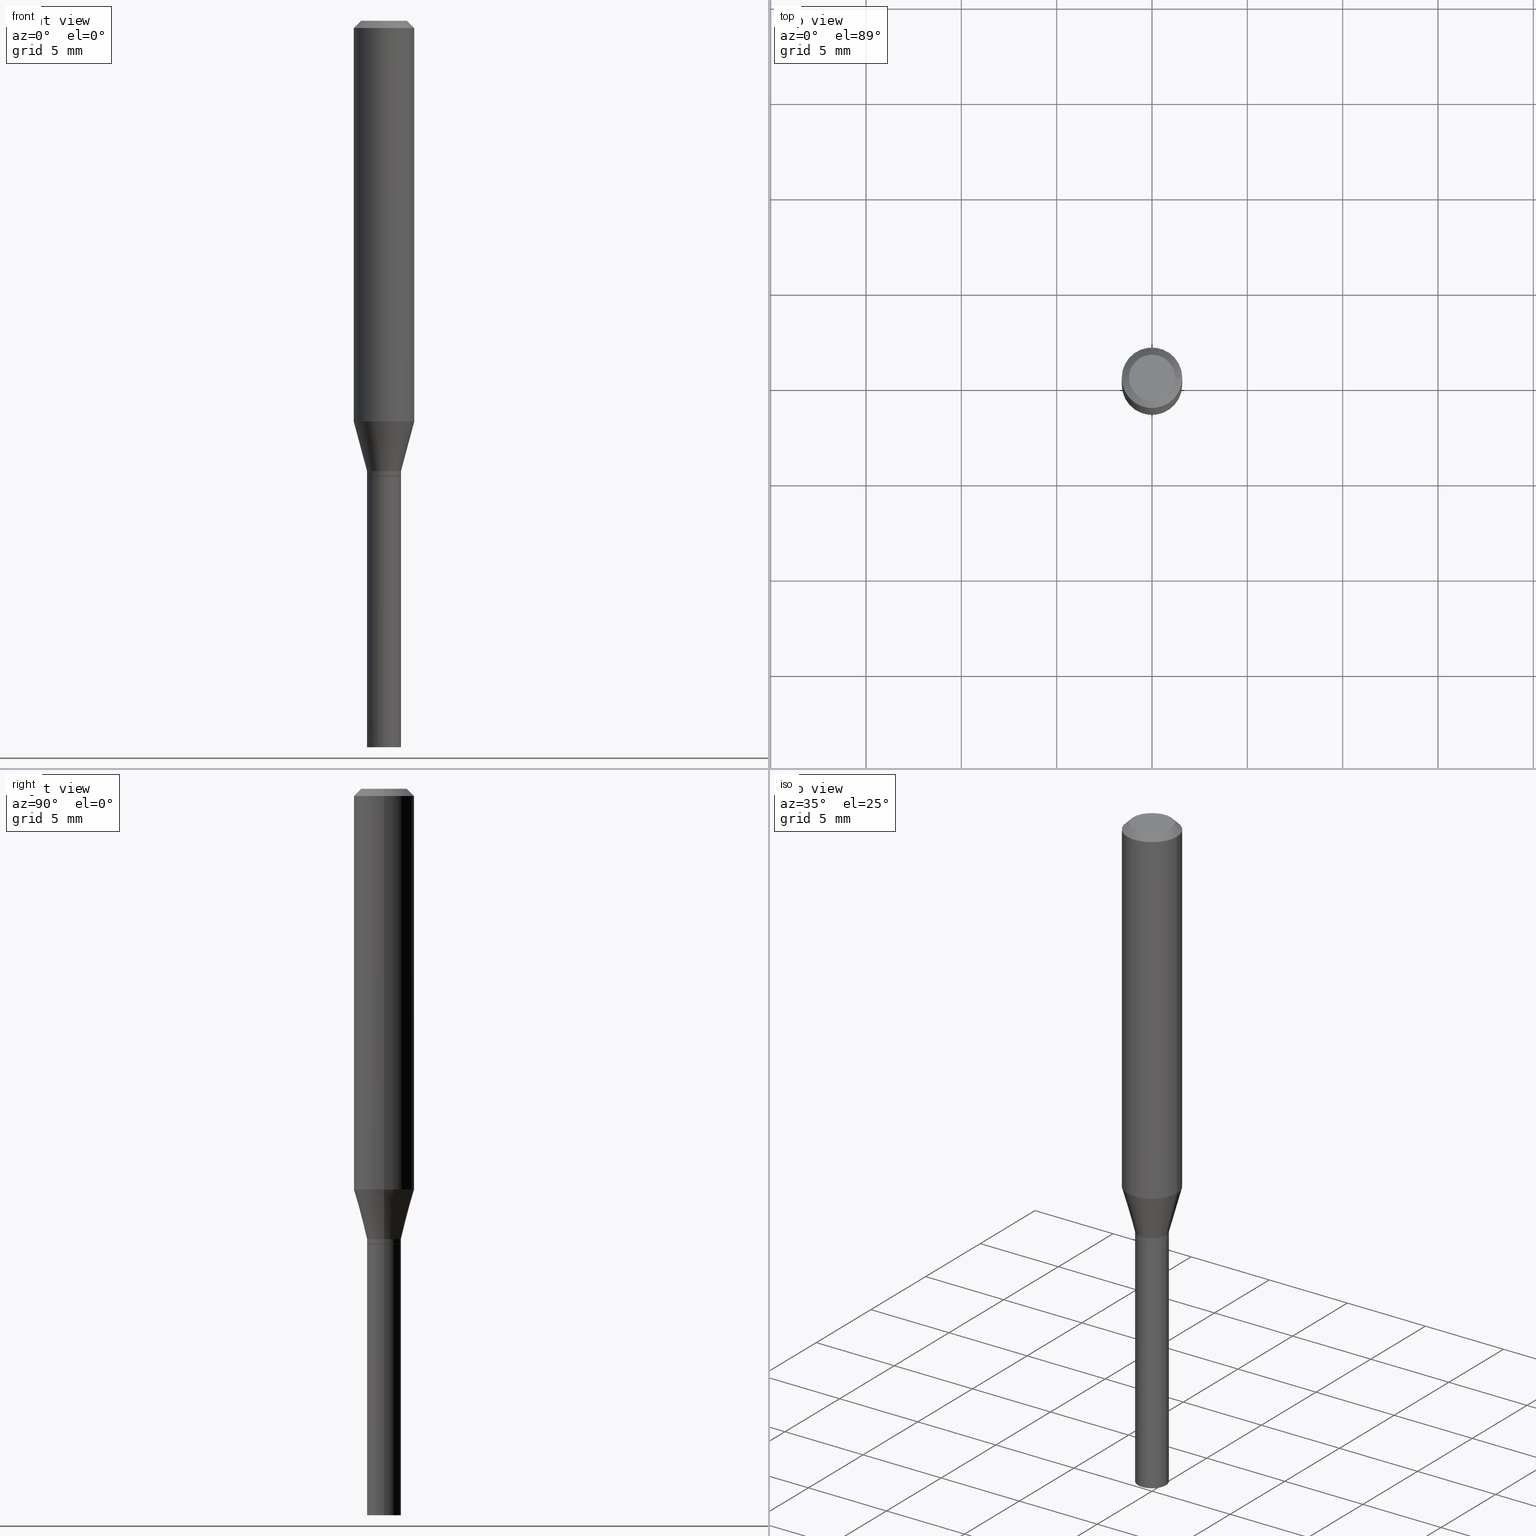
[diagram: canonical four-view strip — front | top / right | iso, engineering-drawing reading convention]
A machine part, canonical four-view strip (front | top / right | iso — engineering-drawing reading convention). The complete STEP part file that produces these views, byte-faithful:
ISO-10303-21;
HEADER;
FILE_DESCRIPTION (( 'STEP AP203' ),
    '1' );
FILE_NAME ('02682.STEP',
    '2024-03-18T21:20:12',
    ( '' ),
    ( '' ),
    'SwSTEP 2.0',
    'SolidWorks 2023',
    '' );
FILE_SCHEMA (( 'CONFIG_CONTROL_DESIGN' ));
ENDSEC;

DATA;
#1 = CLOSED_SHELL ( 'NONE', ( #270, #178, #387, #308, #466, #15, #383, #395, #220, #279, #455, #292 ) ) ;
#2 = CIRCLE ( 'NONE', #378, 0.03500000000000005884 ) ;
#3 = CARTESIAN_POINT ( 'NONE',  ( 0.03500000000000005884, -2.444036937190197687E-16, 1.706661871528580610E-30 ) ) ;
#4 = AXIS2_PLACEMENT_3D ( 'NONE', #362, #115, #394 ) ;
#5 = ORIENTED_EDGE ( 'NONE', *, *, #80, .F. ) ;
#6 = EDGE_CURVE ( 'NONE', #7, #212, #213, .T. ) ;
#7 = VERTEX_POINT ( 'NONE', #243 ) ;
#8 = DIRECTION ( 'NONE',  ( -2.445468806185136597E-29, 3.491481338843145583E-15, 1.000000000000000000 ) ) ;
#9 = ORIENTED_EDGE ( 'NONE', *, *, #124, .F. ) ;
#10 = CC_DESIGN_DATE_AND_TIME_ASSIGNMENT ( #232, #377, ( #236 ) ) ;
#11 = VECTOR ( 'NONE', #357, 39.37007874015748143 ) ;
#12 = CYLINDRICAL_SURFACE ( 'NONE', #289, 0.03500000000000000333 ) ;
#13 = PLANE ( 'NONE',  #355 ) ;
#14 = CARTESIAN_POINT ( 'NONE',  ( 2.297517943410935925E-29, -3.280246717843135762E-15, -0.9395000000000000018 ) ) ;
#15 = ADVANCED_FACE ( 'NONE', ( #219 ), #326, .T. ) ;
#16 = CARTESIAN_POINT ( 'NONE',  ( 0.03500000000000005884, -3.524650411562154939E-15, -0.9395000000000000018 ) ) ;
#17 = CARTESIAN_POINT ( 'NONE',  ( -6.039856226162563845E-45, 8.623313963198305035E-31, 2.469815280770058928E-16 ) ) ;
#18 = LINE ( 'NONE', #295, #393 ) ;
#19 = AXIS2_PLACEMENT_3D ( 'NONE', #141, #421, #101 ) ;
#20 = APPROVAL_PERSON_ORGANIZATION ( #416, #265, #61 ) ;
#21 = CYLINDRICAL_SURFACE ( 'NONE', #26, 0.03500000000000005884 ) ;
#22 = PERSON_AND_ORGANIZATION ( #168, #371 ) ;
#23 = LINE ( 'NONE', #414, #54 ) ;
#24 = DIRECTION ( 'NONE',  ( 1.000000000000000000, -6.982962677686266711E-15, 0.000000000000000000 ) ) ;
#25 = SECURITY_CLASSIFICATION_LEVEL ( 'unclassified' ) ;
#26 = AXIS2_PLACEMENT_3D ( 'NONE', #90, #56, #45 ) ;
#27 = AXIS2_PLACEMENT_3D ( 'NONE', #33, #228, #207 ) ;
#28 = DIRECTION ( 'NONE',  ( 1.000000000000000000, -6.982962677686265922E-15, 0.000000000000000000 ) ) ;
#29 = DATE_AND_TIME ( #458, #363 ) ;
#30 = EDGE_CURVE ( 'NONE', #75, #268, #186, .T. ) ;
#31 = CARTESIAN_POINT ( 'NONE',  ( 2.274285989752177181E-29, -3.247077645124125222E-15, -0.9300000000000000488 ) ) ;
#32 = ORIENTED_EDGE ( 'NONE', *, *, #441, .T. ) ;
#33 = CARTESIAN_POINT ( 'NONE',  ( 0.000000000000000000, 0.000000000000000000, 0.000000000000000000 ) ) ;
#34 = FACE_OUTER_BOUND ( 'NONE', #105, .T. ) ;
#35 = DIRECTION ( 'NONE',  ( -1.000000000000000000, 6.982962677686265922E-15, -4.876176775795935793E-29 ) ) ;
#36 = ORIENTED_EDGE ( 'NONE', *, *, #351, .F. ) ;
#37 = ORIENTED_EDGE ( 'NONE', *, *, #55, .F. ) ;
#38 = VERTEX_POINT ( 'NONE', #321 ) ;
#39 = EDGE_CURVE ( 'NONE', #463, #7, #40, .T. ) ;
#40 = LINE ( 'NONE', #3, #449 ) ;
#41 = AXIS2_PLACEMENT_3D ( 'NONE', #375, #267, #230 ) ;
#42 = AXIS2_PLACEMENT_3D ( 'NONE', #406, #89, #330 ) ;
#43 = EDGE_CURVE ( 'NONE', #216, #212, #108, .T. ) ;
#44 = ORIENTED_EDGE ( 'NONE', *, *, #200, .F. ) ;
#45 = DIRECTION ( 'NONE',  ( 1.000000000000000000, -6.982962677686267499E-15, 4.876176775795936353E-29 ) ) ;
#46 = DIRECTION ( 'NONE',  ( -2.445468806185136597E-29, 3.491481338843145583E-15, 1.000000000000000000 ) ) ;
#47 = CIRCLE ( 'NONE', #296, 0.03500000000000005884 ) ;
#48 = CC_DESIGN_SECURITY_CLASSIFICATION ( #236, ( #263 ) ) ;
#49 = FACE_OUTER_BOUND ( 'NONE', #68, .T. ) ;
#50 = DIRECTION ( 'NONE',  ( 2.445468806185136597E-29, -3.491481338843145583E-15, -1.000000000000000000 ) ) ;
#51 = CARTESIAN_POINT ( 'NONE',  ( -0.03500000000000000333, -4.010917275872602238E-15, -1.500000000000000222 ) ) ;
#52 = FACE_OUTER_BOUND ( 'NONE', #217, .T. ) ;
#53 = DIRECTION ( 'NONE',  ( -0.7071067811865416886, 2.468850131082196713E-15, -0.7071067811865531239 ) ) ;
#54 = VECTOR ( 'NONE', #343, 39.37007874015748143 ) ;
#55 = EDGE_CURVE ( 'NONE', #177, #463, #370, .T. ) ;
#56 = DIRECTION ( 'NONE',  ( -2.445468806185136597E-29, 3.491481338843145583E-15, 1.000000000000000000 ) ) ;
#57 = COORDINATED_UNIVERSAL_TIME_OFFSET ( 5, 0, .BEHIND. ) ;
#58 = CYLINDRICAL_SURFACE ( 'NONE', #91, 0.06250000000000000000 ) ;
#59 = EDGE_CURVE ( 'NONE', #268, #463, #302, .T. ) ;
#60 = DIRECTION ( 'NONE',  ( -1.000000000000000000, 6.982962677686265922E-15, -4.876176775795935793E-29 ) ) ;
#61 = APPROVAL_ROLE ( '' ) ;
#62 = CARTESIAN_POINT ( 'NONE',  ( 2.274285989752177181E-29, -3.247077645124125222E-15, -0.9300000000000000488 ) ) ;
#63 = VERTEX_POINT ( 'NONE', #197 ) ;
#64 = PERSON_AND_ORGANIZATION ( #168, #371 ) ;
#65 = AXIS2_PLACEMENT_3D ( 'NONE', #112, #46, #147 ) ;
#66 = EDGE_LOOP ( 'NONE', ( #376, #110, #9, #81 ) ) ;
#67 = CALENDAR_DATE ( 2024, 18, 3 ) ;
#68 = EDGE_LOOP ( 'NONE', ( #176, #170, #352, #184 ) ) ;
#69 = DIRECTION ( 'NONE',  ( -2.445468806185136597E-29, 3.491481338843145583E-15, 1.000000000000000000 ) ) ;
#70 = CIRCLE ( 'NONE', #146, 0.04749999999999999362 ) ;
#71 = EDGE_CURVE ( 'NONE', #280, #63, #373, .T. ) ;
#72 = CONICAL_SURFACE ( 'NONE', #79, 0.06250000000000000000, 0.7853981633974401744 ) ;
#73 = AXIS2_PLACEMENT_3D ( 'NONE', #249, #8, #189 ) ;
#74 = DIRECTION ( 'NONE',  ( 1.000000000000000000, -6.982962677686265922E-15, 0.000000000000000000 ) ) ;
#75 = VERTEX_POINT ( 'NONE', #158 ) ;
#76 = PRODUCT ( '02682', '02682', '', ( #337 ) ) ;
#77 = AXIS2_PLACEMENT_3D ( 'NONE', #87, #445, #120 ) ;
#78 = VERTEX_POINT ( 'NONE', #298 ) ;
#79 = AXIS2_PLACEMENT_3D ( 'NONE', #86, #157, #193 ) ;
#80 = EDGE_CURVE ( 'NONE', #280, #354, #70, .T. ) ;
#81 = ORIENTED_EDGE ( 'NONE', *, *, #59, .F. ) ;
#82 = CARTESIAN_POINT ( 'NONE',  ( 0.000000000000000000, 0.000000000000000000, 0.000000000000000000 ) ) ;
#83 = EDGE_LOOP ( 'NONE', ( #99, #277, #356, #138 ) ) ;
#84 = CARTESIAN_POINT ( 'NONE',  ( 2.298740677814028446E-29, -3.281992458512556871E-15, -0.9400000000000000577 ) ) ;
#85 = DIRECTION ( 'NONE',  ( -2.445468806185136597E-29, 3.491481338843145583E-15, 1.000000000000000000 ) ) ;
#86 = CARTESIAN_POINT ( 'NONE',  ( 3.668203209277705088E-31, -5.237222008264718399E-17, -0.01499999999999999944 ) ) ;
#87 = CARTESIAN_POINT ( 'NONE',  ( 2.297517943410935925E-29, -3.280246717843135762E-15, -0.9395000000000000018 ) ) ;
#88 = EDGE_CURVE ( 'NONE', #268, #75, #214, .T. ) ;
#89 = DIRECTION ( 'NONE',  ( -2.445468806185136597E-29, 3.491481338843145583E-15, 1.000000000000000000 ) ) ;
#90 = CARTESIAN_POINT ( 'NONE',  ( 0.000000000000000000, 0.000000000000000000, 0.000000000000000000 ) ) ;
#91 = AXIS2_PLACEMENT_3D ( 'NONE', #304, #133, #233 ) ;
#92 = DIRECTION ( 'NONE',  ( -2.445468806185136877E-29, 3.491481338843145188E-15, 1.000000000000000000 ) ) ;
#93 = PERSON_AND_ORGANIZATION_ROLE ( 'design_owner' ) ;
#94 = DIRECTION ( 'NONE',  ( 1.000000000000000000, -6.982962677686276966E-15, 0.000000000000000000 ) ) ;
#95 = EDGE_CURVE ( 'NONE', #182, #274, #433, .T. ) ;
#96 = CARTESIAN_POINT ( 'NONE',  ( -0.03500000000000005884, -3.031556760327099687E-15, -0.9395000000000000018 ) ) ;
#97 = EDGE_LOOP ( 'NONE', ( #278, #206 ) ) ;
#98 = PERSON_AND_ORGANIZATION_ROLE ( 'creator' ) ;
#99 = ORIENTED_EDGE ( 'NONE', *, *, #369, .F. ) ;
#100 = DIRECTION ( 'NONE',  ( -2.445468806185136597E-29, 3.491481338843145583E-15, 1.000000000000000000 ) ) ;
#101 = DIRECTION ( 'NONE',  ( 1.000000000000000000, -6.982962677686266711E-15, 0.000000000000000000 ) ) ;
#102 = ORIENTED_EDGE ( 'NONE', *, *, #333, .T. ) ;
#103 = DATE_AND_TIME ( #454, #129 ) ;
#104 = CYLINDRICAL_SURFACE ( 'NONE', #392, 0.03500000000000005884 ) ;
#105 = EDGE_LOOP ( 'NONE', ( #284, #461, #425, #114 ) ) ;
#106 = ORIENTED_EDGE ( 'NONE', *, *, #359, .F. ) ;
#107 = CC_DESIGN_PERSON_AND_ORGANIZATION_ASSIGNMENT ( #165, #307, ( #236 ) ) ;
#108 = CIRCLE ( 'NONE', #261, 0.06250000000000000000 ) ;
#109 = APPROVAL_PERSON_ORGANIZATION ( #374, #188, #303 ) ;
#110 = ORIENTED_EDGE ( 'NONE', *, *, #200, .T. ) ;
#111 = EDGE_CURVE ( 'NONE', #212, #216, #275, .T. ) ;
#112 = CARTESIAN_POINT ( 'NONE',  ( 2.298740677814028446E-29, -3.281992458512556871E-15, -0.9400000000000000577 ) ) ;
#113 = VECTOR ( 'NONE', #450, 39.37007874015748143 ) ;
#114 = ORIENTED_EDGE ( 'NONE', *, *, #301, .F. ) ;
#115 = DIRECTION ( 'NONE',  ( -2.445468806185136597E-29, 3.491481338843145583E-15, 1.000000000000000000 ) ) ;
#116 = ORIENTED_EDGE ( 'NONE', *, *, #351, .T. ) ;
#117 = DIRECTION ( 'NONE',  ( -2.438088387897960049E-29, 3.491481338843145188E-15, 1.000000000000000000 ) ) ;
#118 = EDGE_CURVE ( 'NONE', #354, #231, #407, .T. ) ;
#119 = CARTESIAN_POINT ( 'NONE',  ( -0.04749999999999999362, 3.578768372314215436E-16, 2.469815280770034769E-16 ) ) ;
#120 = DIRECTION ( 'NONE',  ( 1.000000000000000000, -6.982962677686265922E-15, 0.000000000000000000 ) ) ;
#121 =( NAMED_UNIT ( * ) PLANE_ANGLE_UNIT ( ) SI_UNIT ( $, .RADIAN. ) );
#122 = DIRECTION ( 'NONE',  ( 0.7071067811865656694, -2.468850131082446387E-15, 0.7071067811865294761 ) ) ;
#123 = DIRECTION ( 'NONE',  ( 1.000000000000000000, -6.982962677686262766E-15, 0.000000000000000000 ) ) ;
#124 = EDGE_CURVE ( 'NONE', #463, #177, #2, .T. ) ;
#125 = DIRECTION ( 'NONE',  ( 1.000000000000000000, -6.982962677686265922E-15, 0.000000000000000000 ) ) ;
#126 = PERSON_AND_ORGANIZATION ( #168, #371 ) ;
#127 = DIRECTION ( 'NONE',  ( -2.445468806185136597E-29, 3.491481338843145583E-15, 1.000000000000000000 ) ) ;
#128 = VECTOR ( 'NONE', #329, 39.37007874015748854 ) ;
#129 = LOCAL_TIME ( 17, 20, 12.00000000000000000, #57 ) ;
#130 = CALENDAR_DATE ( 2024, 18, 3 ) ;
#131 = ORIENTED_EDGE ( 'NONE', *, *, #413, .F. ) ;
#132 = APPROVAL_DATE_TIME ( #276, #188 ) ;
#133 = DIRECTION ( 'NONE',  ( -2.445468806185136597E-29, 3.491481338843145583E-15, 1.000000000000000000 ) ) ;
#134 = CARTESIAN_POINT ( 'NONE',  ( 3.668203209277705088E-31, -5.237222008264718399E-17, -0.01499999999999999944 ) ) ;
#135 = DESIGN_CONTEXT ( 'detailed design', #282, 'design' ) ;
#136 = SHAPE_DEFINITION_REPRESENTATION ( #427, #281 ) ;
#137 = DIRECTION ( 'NONE',  ( 1.000000000000000000, -6.982962677686261977E-15, 0.000000000000000000 ) ) ;
#138 = ORIENTED_EDGE ( 'NONE', *, *, #226, .F. ) ;
#139 = APPROVAL_DATE_TIME ( #29, #311 ) ;
#140 = CARTESIAN_POINT ( 'NONE',  ( 0.06250000000000000000, -4.364351673553916694E-16, 3.047610484872459871E-30 ) ) ;
#141 = CARTESIAN_POINT ( 'NONE',  ( 3.668203209277705088E-31, -5.237222008264718399E-17, -0.01499999999999999944 ) ) ;
#142 = DIRECTION ( 'NONE',  ( 2.438088387897960049E-29, -3.491481338843145188E-15, -1.000000000000000000 ) ) ;
#143 = ORIENTED_EDGE ( 'NONE', *, *, #71, .T. ) ;
#144 = ORIENTED_EDGE ( 'NONE', *, *, #118, .F. ) ;
#145 = EDGE_CURVE ( 'NONE', #38, #216, #399, .T. ) ;
#146 = AXIS2_PLACEMENT_3D ( 'NONE', #17, #366, #262 ) ;
#147 = DIRECTION ( 'NONE',  ( 1.000000000000000000, -6.982962677686261977E-15, 0.000000000000000000 ) ) ;
#148 = DIMENSIONAL_EXPONENTS ( 1.000000000000000000, 0.000000000000000000, 0.000000000000000000, 0.000000000000000000, 0.000000000000000000, 0.000000000000000000, 0.000000000000000000 ) ;
#149 = ORIENTED_EDGE ( 'NONE', *, *, #226, .T. ) ;
#150 = CIRCLE ( 'NONE', #41, 0.03500000000000000333 ) ;
#151 = VERTEX_POINT ( 'NONE', #51 ) ;
#152 = DIRECTION ( 'NONE',  ( -2.445468806185136597E-29, 3.491481338843145583E-15, 1.000000000000000000 ) ) ;
#153 = FACE_OUTER_BOUND ( 'NONE', #344, .T. ) ;
#154 = DIRECTION ( 'NONE',  ( 1.000000000000000000, -6.982962677686265922E-15, 0.000000000000000000 ) ) ;
#155 = FACE_OUTER_BOUND ( 'NONE', #239, .T. ) ;
#156 = DIRECTION ( 'NONE',  ( -2.445468806185136597E-29, 3.491481338843145583E-15, 1.000000000000000000 ) ) ;
#157 = DIRECTION ( 'NONE',  ( 2.445468806185136597E-29, -3.491481338843145583E-15, -1.000000000000000000 ) ) ;
#158 = CARTESIAN_POINT ( 'NONE',  ( -0.03450000000000000289, -3.034205987501211283E-15, -0.9400000000000000577 ) ) ;
#159 = VECTOR ( 'NONE', #271, 39.37007874015748143 ) ;
#160 = CARTESIAN_POINT ( 'NONE',  ( 2.023304109344465538E-29, -2.888742036992493542E-15, -0.8273686027918564223 ) ) ;
#161 = PERSON_AND_ORGANIZATION_ROLE ( 'design_supplier' ) ;
#162 = APPROVAL_STATUS ( 'not_yet_approved' ) ;
#163 = CARTESIAN_POINT ( 'NONE',  ( 0.04749999999999999362, -4.035134999187574186E-16, 2.469815280770084566E-16 ) ) ;
#164 = CONICAL_SURFACE ( 'NONE', #328, 0.03500000000000005884, 0.2617993877991501295 ) ;
#165 = PERSON_AND_ORGANIZATION ( #168, #371 ) ;
#166 = DIRECTION ( 'NONE',  ( -2.445468806185136597E-29, 3.491481338843145583E-15, 1.000000000000000000 ) ) ;
#167 = FACE_OUTER_BOUND ( 'NONE', #465, .T. ) ;
#168 = PERSON ( 'UNSPECIFIED', 'UNSPECIFIED', 'UNSPECIFIED', ('UNSPECIFIED'), ('UNSPECIFIED'), ('UNSPECIFIED') ) ;
#169 = COORDINATED_UNIVERSAL_TIME_OFFSET ( 5, 0, .BEHIND. ) ;
#170 = ORIENTED_EDGE ( 'NONE', *, *, #413, .T. ) ;
#171 = CARTESIAN_POINT ( 'NONE',  ( 3.668203209277704895E-29, -5.237222008264718177E-15, -1.500000000000000222 ) ) ;
#172 = ADVANCED_FACE ( 'NONE', ( #346 ), #453, .F. ) ;
#173 = CC_DESIGN_APPROVAL ( #265, ( #437 ) ) ;
#174 = FACE_OUTER_BOUND ( 'NONE', #319, .T. ) ;
#175 = CC_DESIGN_PERSON_AND_ORGANIZATION_ASSIGNMENT ( #264, #238, ( #263 ) ) ;
#176 = ORIENTED_EDGE ( 'NONE', *, *, #320, .T. ) ;
#177 = VERTEX_POINT ( 'NONE', #96 ) ;
#178 = ADVANCED_FACE ( 'NONE', ( #456 ), #225, .T. ) ;
#179 = ORIENTED_EDGE ( 'NONE', *, *, #95, .T. ) ;
#180 = AXIS2_PLACEMENT_3D ( 'NONE', #234, #69, #137 ) ;
#181 =( GEOMETRIC_REPRESENTATION_CONTEXT ( 3 ) GLOBAL_UNCERTAINTY_ASSIGNED_CONTEXT ( ( #348 ) ) GLOBAL_UNIT_ASSIGNED_CONTEXT ( ( #291, #121, #253 ) ) REPRESENTATION_CONTEXT ( 'NONE', 'WORKASPACE' ) );
#182 = VERTEX_POINT ( 'NONE', #273 ) ;
#183 = ORIENTED_EDGE ( 'NONE', *, *, #6, .T. ) ;
#184 = ORIENTED_EDGE ( 'NONE', *, *, #333, .F. ) ;
#185 = CARTESIAN_POINT ( 'NONE',  ( 0.03500000000000000333, -3.526396152231576048E-15, -0.9400000000000000577 ) ) ;
#186 = CIRCLE ( 'NONE', #65, 0.03450000000000000289 ) ;
#187 = APPROVAL_PERSON_ORGANIZATION ( #64, #311, #205 ) ;
#188 = APPROVAL ( #162, 'UNSPECIFIED' ) ;
#189 = DIRECTION ( 'NONE',  ( 1.000000000000000000, -6.982962677686267499E-15, 4.852736867747366768E-29 ) ) ;
#190 = FACE_OUTER_BOUND ( 'NONE', #245, .T. ) ;
#191 = CARTESIAN_POINT ( 'NONE',  ( 0.06250000000000000000, -4.811533449433679005E-16, -0.01499999999999999944 ) ) ;
#192 = EDGE_CURVE ( 'NONE', #231, #63, #444, .T. ) ;
#193 = DIRECTION ( 'NONE',  ( -1.000000000000000000, 6.982962677686266711E-15, 0.000000000000000000 ) ) ;
#194 = DIRECTION ( 'NONE',  ( -2.445468806185136597E-29, 3.491481338843145583E-15, 1.000000000000000000 ) ) ;
#195 = DIRECTION ( 'NONE',  ( 1.000000000000000000, -6.982962677686265922E-15, 4.876176775795936353E-29 ) ) ;
#196 = CIRCLE ( 'NONE', #459, 0.03500000000000000333 ) ;
#197 = CARTESIAN_POINT ( 'NONE',  ( -0.06250000000000000000, -1.026467918687507694E-15, -0.01499999999999999944 ) ) ;
#198 = DATE_TIME_ROLE ( 'creation_date' ) ;
#199 = DIRECTION ( 'NONE',  ( -2.445468806185136597E-29, 3.491481338843145583E-15, 1.000000000000000000 ) ) ;
#200 = EDGE_CURVE ( 'NONE', #75, #177, #384, .T. ) ;
#201 = APPROVAL_STATUS ( 'not_yet_approved' ) ;
#202 = CARTESIAN_POINT ( 'NONE',  ( -0.03450000000000000289, -3.036855214675322484E-15, -0.9400000000000000577 ) ) ;
#203 = VECTOR ( 'NONE', #122, 39.37007874015748143 ) ;
#204 = CIRCLE ( 'NONE', #73, 0.04749999999999999362 ) ;
#205 = APPROVAL_ROLE ( '' ) ;
#206 = ORIENTED_EDGE ( 'NONE', *, *, #246, .F. ) ;
#207 = DIRECTION ( 'NONE',  ( 1.000000000000000000, 0.000000000000000000, 0.000000000000000000 ) ) ;
#208 = ORIENTED_EDGE ( 'NONE', *, *, #95, .F. ) ;
#209 = CC_DESIGN_PERSON_AND_ORGANIZATION_ASSIGNMENT ( #22, #161, ( #263 ) ) ;
#210 = AXIS2_PLACEMENT_3D ( 'NONE', #31, #166, #312 ) ;
#211 = ORIENTED_EDGE ( 'NONE', *, *, #71, .F. ) ;
#212 = VERTEX_POINT ( 'NONE', #452 ) ;
#213 = LINE ( 'NONE', #388, #338 ) ;
#214 = CIRCLE ( 'NONE', #334, 0.03450000000000000289 ) ;
#215 = CC_DESIGN_APPROVAL ( #188, ( #263 ) ) ;
#216 = VERTEX_POINT ( 'NONE', #347 ) ;
#217 = EDGE_LOOP ( 'NONE', ( #44, #426, #390, #37 ) ) ;
#218 = DIRECTION ( 'NONE',  ( -1.000000000000000000, 6.982962677686266711E-15, 0.000000000000000000 ) ) ;
#219 = FACE_OUTER_BOUND ( 'NONE', #285, .T. ) ;
#220 = ADVANCED_FACE ( 'NONE', ( #174 ), #318, .F. ) ;
#221 = DIRECTION ( 'NONE',  ( 1.000000000000000000, -6.982962677686262766E-15, 0.000000000000000000 ) ) ;
#222 = CARTESIAN_POINT ( 'NONE',  ( 2.274285989752177181E-29, -3.247077645124125222E-15, -0.9300000000000000488 ) ) ;
#223 = CARTESIAN_POINT ( 'NONE',  ( 2.298740677814028446E-29, -3.281992458512556871E-15, -0.9400000000000000577 ) ) ;
#224 = CARTESIAN_POINT ( 'NONE',  ( -0.06250000000000000000, 3.840629472727444916E-16, -0.01499999999999999944 ) ) ;
#225 = CONICAL_SURFACE ( 'NONE', #180, 0.03450000000000000289, 0.7853981633974739252 ) ;
#226 = EDGE_CURVE ( 'NONE', #63, #231, #241, .T. ) ;
#227 = CARTESIAN_POINT ( 'NONE',  ( 0.03450000000000000289, -3.522904670892733041E-15, -0.9400000000000000577 ) ) ;
#228 = DIRECTION ( 'NONE',  ( 0.000000000000000000, 0.000000000000000000, 1.000000000000000000 ) ) ;
#229 = CARTESIAN_POINT ( 'NONE',  ( -0.03500000000000005884, 2.486899575160354832E-16, -1.721627281589219910E-30 ) ) ;
#230 = DIRECTION ( 'NONE',  ( 1.000000000000000000, -6.982962677686276966E-15, 0.000000000000000000 ) ) ;
#231 = VERTEX_POINT ( 'NONE', #306 ) ;
#232 = DATE_AND_TIME ( #67, #297 ) ;
#233 = DIRECTION ( 'NONE',  ( 1.000000000000000000, -6.982962677686266711E-15, 4.876176775795935793E-29 ) ) ;
#234 = CARTESIAN_POINT ( 'NONE',  ( 2.298740677814028446E-29, -3.281992458512556871E-15, -0.9400000000000000577 ) ) ;
#235 = AXIS2_PLACEMENT_3D ( 'NONE', #462, #142, #60 ) ;
#236 = SECURITY_CLASSIFICATION ( '', '', #25 ) ;
#237 = ORIENTED_EDGE ( 'NONE', *, *, #39, .T. ) ;
#238 = PERSON_AND_ORGANIZATION_ROLE ( 'creator' ) ;
#239 = EDGE_LOOP ( 'NONE', ( #324, #422, #379, #313 ) ) ;
#240 = ORIENTED_EDGE ( 'NONE', *, *, #30, .F. ) ;
#241 = CIRCLE ( 'NONE', #420, 0.06250000000000000000 ) ;
#242 = CC_DESIGN_APPROVAL ( #311, ( #236 ) ) ;
#243 = CARTESIAN_POINT ( 'NONE',  ( 0.03500000000000005884, -3.491481338843145188E-15, -0.9300000000000000488 ) ) ;
#244 = CARTESIAN_POINT ( 'NONE',  ( -0.06250000000000000000, 4.440892098500626162E-16, -3.074334431409316114E-30 ) ) ;
#245 = EDGE_LOOP ( 'NONE', ( #431, #116, #247, #430 ) ) ;
#246 = EDGE_CURVE ( 'NONE', #151, #78, #150, .T. ) ;
#247 = ORIENTED_EDGE ( 'NONE', *, *, #250, .F. ) ;
#248 = DIRECTION ( 'NONE',  ( 0.2588190451025214611, 1.565188264969621573E-15, 0.9659258262890682012 ) ) ;
#249 = CARTESIAN_POINT ( 'NONE',  ( -6.039856226162563845E-45, 8.623313963198305035E-31, 2.469815280770058928E-16 ) ) ;
#250 = EDGE_CURVE ( 'NONE', #7, #38, #47, .T. ) ;
#251 = DIRECTION ( 'NONE',  ( -2.438088387897960049E-29, 3.491481338843145188E-15, 1.000000000000000000 ) ) ;
#252 = DIRECTION ( 'NONE',  ( 1.000000000000000000, -6.982962677686262766E-15, 0.000000000000000000 ) ) ;
#253 =( NAMED_UNIT ( * ) SI_UNIT ( $, .STERADIAN. ) SOLID_ANGLE_UNIT ( ) );
#254 = AXIS2_PLACEMENT_3D ( 'NONE', #160, #440, #252 ) ;
#255 = CARTESIAN_POINT ( 'NONE',  ( -0.03500000000000005884, -2.998387687608089936E-15, -0.9300000000000000488 ) ) ;
#256 = CARTESIAN_POINT ( 'NONE',  ( 3.576687321579069994E-29, -5.368277968210015545E-15, -1.500000000000000222 ) ) ;
#257 = DIRECTION ( 'NONE',  ( -2.445468806185136877E-29, 3.491481338843145188E-15, 1.000000000000000000 ) ) ;
#258 = CARTESIAN_POINT ( 'NONE',  ( 2.023304109344465538E-29, -2.888742036992493542E-15, -0.8273686027918564223 ) ) ;
#259 = ADVANCED_FACE ( 'NONE', ( #167 ), #309, .T. ) ;
#260 = FACE_OUTER_BOUND ( 'NONE', #325, .T. ) ;
#261 = AXIS2_PLACEMENT_3D ( 'NONE', #258, #85, #221 ) ;
#262 = DIRECTION ( 'NONE',  ( 1.000000000000000000, -6.982962677686267499E-15, 4.852736867747366768E-29 ) ) ;
#263 = PRODUCT_DEFINITION_FORMATION_WITH_SPECIFIED_SOURCE ( 'ANY', '', #76, .NOT_KNOWN. ) ;
#264 = PERSON_AND_ORGANIZATION ( #168, #371 ) ;
#265 = APPROVAL ( #201, 'UNSPECIFIED' ) ;
#266 = DIRECTION ( 'NONE',  ( 1.000000000000000000, -6.982962677686267499E-15, 4.876176775795936353E-29 ) ) ;
#267 = DIRECTION ( 'NONE',  ( -2.445468806185136597E-29, 3.491481338843145583E-15, 1.000000000000000000 ) ) ;
#268 = VERTEX_POINT ( 'NONE', #398 ) ;
#269 = COORDINATED_UNIVERSAL_TIME_OFFSET ( 5, 0, .BEHIND. ) ;
#270 = ADVANCED_FACE ( 'NONE', ( #190 ), #21, .T. ) ;
#271 = DIRECTION ( 'NONE',  ( -0.7071067811865656694, 7.493145998870420424E-15, 0.7071067811865294761 ) ) ;
#272 = LINE ( 'NONE', #244, #11 ) ;
#273 = CARTESIAN_POINT ( 'NONE',  ( -0.03500000000000000333, -4.010917275872602238E-15, -0.9400000000000000577 ) ) ;
#274 = VERTEX_POINT ( 'NONE', #185 ) ;
#275 = CIRCLE ( 'NONE', #254, 0.06250000000000000000 ) ;
#276 = DATE_AND_TIME ( #130, #340 ) ;
#277 = ORIENTED_EDGE ( 'NONE', *, *, #43, .T. ) ;
#278 = ORIENTED_EDGE ( 'NONE', *, *, #320, .F. ) ;
#279 = ADVANCED_FACE ( 'NONE', ( #153 ), #13, .F. ) ;
#280 = VERTEX_POINT ( 'NONE', #119 ) ;
#281 = ADVANCED_BREP_SHAPE_REPRESENTATION ( '02682', ( #385, #389, #27 ), #181 ) ;
#282 = APPLICATION_CONTEXT ( 'configuration controlled 3d designs of mechanical parts and assemblies' ) ;
#283 = CC_DESIGN_DATE_AND_TIME_ASSIGNMENT ( #103, #198, ( #437 ) ) ;
#284 = ORIENTED_EDGE ( 'NONE', *, *, #111, .T. ) ;
#285 = EDGE_LOOP ( 'NONE', ( #443, #322, #183, #429 ) ) ;
#286 = ORIENTED_EDGE ( 'NONE', *, *, #118, .T. ) ;
#287 = FACE_OUTER_BOUND ( 'NONE', #97, .T. ) ;
#288 = VECTOR ( 'NONE', #92, 39.37007874015748143 ) ;
#289 = AXIS2_PLACEMENT_3D ( 'NONE', #82, #152, #438 ) ;
#290 = CARTESIAN_POINT ( 'NONE',  ( 2.298740677814028446E-29, -3.281992458512556871E-15, -0.9400000000000000577 ) ) ;
#291 =( CONVERSION_BASED_UNIT ( 'INCH', #299 ) LENGTH_UNIT ( ) NAMED_UNIT ( #148 ) );
#292 = ADVANCED_FACE ( 'NONE', ( #260 ), #104, .T. ) ;
#293 = DIRECTION ( 'NONE',  ( 1.000000000000000000, -6.982962677686261977E-15, 0.000000000000000000 ) ) ;
#294 = ORIENTED_EDGE ( 'NONE', *, *, #80, .T. ) ;
#295 = CARTESIAN_POINT ( 'NONE',  ( -0.03500000000000000333, 2.486899575160350887E-16, -1.721627281589217108E-30 ) ) ;
#296 = AXIS2_PLACEMENT_3D ( 'NONE', #62, #339, #28 ) ;
#297 = LOCAL_TIME ( 17, 20, 12.00000000000000000, #269 ) ;
#298 = CARTESIAN_POINT ( 'NONE',  ( 0.03500000000000000333, -5.481625701983738143E-15, -1.500000000000000222 ) ) ;
#299 = LENGTH_MEASURE_WITH_UNIT ( LENGTH_MEASURE( 0.02539999999999999897 ), #368 );
#300 = DIRECTION ( 'NONE',  ( -2.445468806185136877E-29, 3.491481338843145188E-15, 1.000000000000000000 ) ) ;
#301 = EDGE_CURVE ( 'NONE', #212, #231, #345, .T. ) ;
#302 = LINE ( 'NONE', #227, #203 ) ;
#303 = APPROVAL_ROLE ( '' ) ;
#304 = CARTESIAN_POINT ( 'NONE',  ( 0.000000000000000000, 0.000000000000000000, 0.000000000000000000 ) ) ;
#305 = AXIS2_PLACEMENT_3D ( 'NONE', #360, #353, #74 ) ;
#306 = CARTESIAN_POINT ( 'NONE',  ( 0.06250000000000000000, -4.888073874380388472E-16, -0.01499999999999999944 ) ) ;
#307 = PERSON_AND_ORGANIZATION_ROLE ( 'classification_officer' ) ;
#308 = ADVANCED_FACE ( 'NONE', ( #34 ), #58, .T. ) ;
#309 = CYLINDRICAL_SURFACE ( 'NONE', #428, 0.03500000000000000333 ) ;
#310 = PERSON_AND_ORGANIZATION ( #168, #371 ) ;
#311 = APPROVAL ( #314, 'UNSPECIFIED' ) ;
#312 = DIRECTION ( 'NONE',  ( 1.000000000000000000, -6.982962677686265922E-15, 0.000000000000000000 ) ) ;
#313 = ORIENTED_EDGE ( 'NONE', *, *, #6, .F. ) ;
#314 = APPROVAL_STATUS ( 'not_yet_approved' ) ;
#315 = LINE ( 'NONE', #229, #113 ) ;
#316 = EDGE_LOOP ( 'NONE', ( #144, #5, #143, #149 ) ) ;
#317 = VECTOR ( 'NONE', #53, 39.37007874015748854 ) ;
#318 = PLANE ( 'NONE',  #235 ) ;
#319 = EDGE_LOOP ( 'NONE', ( #294, #32 ) ) ;
#320 = EDGE_CURVE ( 'NONE', #78, #151, #196, .T. ) ;
#321 = CARTESIAN_POINT ( 'NONE',  ( -0.03500000000000005884, -2.721520257375260628E-15, -0.9300000000000000488 ) ) ;
#322 = ORIENTED_EDGE ( 'NONE', *, *, #359, .T. ) ;
#323 = CLOSED_SHELL ( 'NONE', ( #405, #432, #259, #172 ) ) ;
#324 = ORIENTED_EDGE ( 'NONE', *, *, #250, .T. ) ;
#325 = EDGE_LOOP ( 'NONE', ( #36, #382, #237, #106 ) ) ;
#326 = CONICAL_SURFACE ( 'NONE', #305, 0.03500000000000005884, 0.2617993877991501295 ) ;
#327 = CYLINDRICAL_SURFACE ( 'NONE', #4, 0.06250000000000000000 ) ;
#328 = AXIS2_PLACEMENT_3D ( 'NONE', #222, #332, #125 ) ;
#329 = DIRECTION ( 'NONE',  ( 0.7071067811865416886, -7.319954787623233957E-15, -0.7071067811865531239 ) ) ;
#330 = DIRECTION ( 'NONE',  ( 1.000000000000000000, -6.982962677686261977E-15, 0.000000000000000000 ) ) ;
#331 = FACE_OUTER_BOUND ( 'NONE', #396, .T. ) ;
#332 = DIRECTION ( 'NONE',  ( -2.445468806185136597E-29, 3.491481338843145583E-15, 1.000000000000000000 ) ) ;
#333 = EDGE_CURVE ( 'NONE', #78, #274, #23, .T. ) ;
#334 = AXIS2_PLACEMENT_3D ( 'NONE', #223, #156, #293 ) ;
#335 = CIRCLE ( 'NONE', #451, 0.03500000000000000333 ) ;
#336 = DIRECTION ( 'NONE',  ( 1.000000000000000000, -6.982962677686262766E-15, 0.000000000000000000 ) ) ;
#337 = MECHANICAL_CONTEXT ( 'NONE', #464, 'mechanical' ) ;
#338 = VECTOR ( 'NONE', #248, 39.37007874015747433 ) ;
#339 = DIRECTION ( 'NONE',  ( -2.445468806185136597E-29, 3.491481338843145583E-15, 1.000000000000000000 ) ) ;
#340 = LOCAL_TIME ( 17, 20, 12.00000000000000000, #448 ) ;
#341 = PRODUCT_RELATED_PRODUCT_CATEGORY ( 'detail', '', ( #76 ) ) ;
#342 = COORDINATED_UNIVERSAL_TIME_OFFSET ( 5, 0, .BEHIND. ) ;
#343 = DIRECTION ( 'NONE',  ( -2.445468806185136877E-29, 3.491481338843145188E-15, 1.000000000000000000 ) ) ;
#344 = EDGE_LOOP ( 'NONE', ( #400, #240 ) ) ;
#345 = LINE ( 'NONE', #140, #288 ) ;
#346 = FACE_OUTER_BOUND ( 'NONE', #457, .T. ) ;
#347 = CARTESIAN_POINT ( 'NONE',  ( -0.06250000000000000000, -2.444652827142430926E-15, -0.8273686027918564223 ) ) ;
#348 = UNCERTAINTY_MEASURE_WITH_UNIT (LENGTH_MEASURE( 1.000000000000000082E-05 ), #291, 'distance_accuracy_value', 'NONE');
#349 = AXIS2_PLACEMENT_3D ( 'NONE', #418, #381, #35 ) ;
#350 = CONICAL_SURFACE ( 'NONE', #403, 0.06250000000000000000, 0.7853981633974401744 ) ;
#351 = EDGE_CURVE ( 'NONE', #177, #38, #315, .T. ) ;
#352 = ORIENTED_EDGE ( 'NONE', *, *, #423, .F. ) ;
#353 = DIRECTION ( 'NONE',  ( -2.445468806185136597E-29, 3.491481338843145583E-15, 1.000000000000000000 ) ) ;
#354 = VERTEX_POINT ( 'NONE', #163 ) ;
#355 = AXIS2_PLACEMENT_3D ( 'NONE', #290, #251, #439 ) ;
#356 = ORIENTED_EDGE ( 'NONE', *, *, #301, .T. ) ;
#357 = DIRECTION ( 'NONE',  ( -2.445468806185136877E-29, 3.491481338843145188E-15, 1.000000000000000000 ) ) ;
#358 = CARTESIAN_POINT ( 'NONE',  ( 0.000000000000000000, 0.000000000000000000, 0.000000000000000000 ) ) ;
#359 = EDGE_CURVE ( 'NONE', #38, #7, #411, .T. ) ;
#360 = CARTESIAN_POINT ( 'NONE',  ( 2.274285989752177181E-29, -3.247077645124125222E-15, -0.9300000000000000488 ) ) ;
#361 = VECTOR ( 'NONE', #404, 39.37007874015747433 ) ;
#362 = CARTESIAN_POINT ( 'NONE',  ( 0.000000000000000000, 0.000000000000000000, 0.000000000000000000 ) ) ;
#363 = LOCAL_TIME ( 17, 20, 12.00000000000000000, #342 ) ;
#364 = DIRECTION ( 'NONE',  ( 1.000000000000000000, -6.982962677686265922E-15, 4.876176775795935793E-29 ) ) ;
#365 = DIRECTION ( 'NONE',  ( -2.445468806185136597E-29, 3.491481338843145583E-15, 1.000000000000000000 ) ) ;
#366 = DIRECTION ( 'NONE',  ( -2.445468806185136597E-29, 3.491481338843145583E-15, 1.000000000000000000 ) ) ;
#367 = ORIENTED_EDGE ( 'NONE', *, *, #246, .T. ) ;
#368 =( LENGTH_UNIT ( ) NAMED_UNIT ( * ) SI_UNIT ( $, .METRE. ) );
#369 = EDGE_CURVE ( 'NONE', #216, #63, #272, .T. ) ;
#370 = CIRCLE ( 'NONE', #77, 0.03500000000000005884 ) ;
#371 = ORGANIZATION ( 'UNSPECIFIED', 'UNSPECIFIED', '' ) ;
#372 = DATE_AND_TIME ( #446, #386 ) ;
#373 = LINE ( 'NONE', #224, #317 ) ;
#374 = PERSON_AND_ORGANIZATION ( #168, #371 ) ;
#375 = CARTESIAN_POINT ( 'NONE',  ( 3.668203209277704895E-29, -5.237222008264718177E-15, -1.500000000000000222 ) ) ;
#376 = ORIENTED_EDGE ( 'NONE', *, *, #88, .T. ) ;
#377 = DATE_TIME_ROLE ( 'classification_date' ) ;
#378 = AXIS2_PLACEMENT_3D ( 'NONE', #14, #442, #154 ) ;
#379 = ORIENTED_EDGE ( 'NONE', *, *, #111, .F. ) ;
#380 = APPLICATION_PROTOCOL_DEFINITION ( 'international standard', 'config_control_design', 1994, #282 ) ;
#381 = DIRECTION ( 'NONE',  ( 2.438088387897960049E-29, -3.491481338843145188E-15, -1.000000000000000000 ) ) ;
#382 = ORIENTED_EDGE ( 'NONE', *, *, #55, .T. ) ;
#383 = ADVANCED_FACE ( 'NONE', ( #435 ), #327, .T. ) ;
#384 = LINE ( 'NONE', #202, #159 ) ;
#385 = MANIFOLD_SOLID_BREP ( 'Body-Move/Copy2[1]', #323 ) ;
#386 = LOCAL_TIME ( 17, 20, 12.00000000000000000, #169 ) ;
#387 = ADVANCED_FACE ( 'NONE', ( #331 ), #350, .T. ) ;
#388 = CARTESIAN_POINT ( 'NONE',  ( 0.03500000000000005884, -3.491481338843145188E-15, -0.9300000000000000488 ) ) ;
#389 = MANIFOLD_SOLID_BREP ( 'Body-Move/Copy2[2]', #1 ) ;
#390 = ORIENTED_EDGE ( 'NONE', *, *, #59, .T. ) ;
#391 = ORIENTED_EDGE ( 'NONE', *, *, #423, .T. ) ;
#392 = AXIS2_PLACEMENT_3D ( 'NONE', #419, #100, #266 ) ;
#393 = VECTOR ( 'NONE', #257, 39.37007874015748143 ) ;
#394 = DIRECTION ( 'NONE',  ( 1.000000000000000000, -6.982962677686266711E-15, 4.876176775795935793E-29 ) ) ;
#395 = ADVANCED_FACE ( 'NONE', ( #397 ), #72, .T. ) ;
#396 = EDGE_LOOP ( 'NONE', ( #415, #286, #436, #211 ) ) ;
#397 = FACE_OUTER_BOUND ( 'NONE', #316, .T. ) ;
#398 = CARTESIAN_POINT ( 'NONE',  ( 0.03450000000000000289, -3.522904670892733041E-15, -0.9400000000000000577 ) ) ;
#399 = LINE ( 'NONE', #255, #361 ) ;
#400 = ORIENTED_EDGE ( 'NONE', *, *, #88, .F. ) ;
#401 = AXIS2_PLACEMENT_3D ( 'NONE', #447, #127, #336 ) ;
#402 = CARTESIAN_POINT ( 'NONE',  ( 3.668203209277705088E-31, -5.237222008264718399E-17, -0.01499999999999999944 ) ) ;
#403 = AXIS2_PLACEMENT_3D ( 'NONE', #402, #50, #218 ) ;
#404 = DIRECTION ( 'NONE',  ( -0.2588190451025214611, 5.211531920934551042E-15, 0.9659258262890682012 ) ) ;
#405 = ADVANCED_FACE ( 'NONE', ( #49 ), #12, .T. ) ;
#406 = CARTESIAN_POINT ( 'NONE',  ( 2.298740677814028446E-29, -3.281992458512556871E-15, -0.9400000000000000577 ) ) ;
#407 = LINE ( 'NONE', #191, #128 ) ;
#408 = CC_DESIGN_PERSON_AND_ORGANIZATION_ASSIGNMENT ( #126, #93, ( #76 ) ) ;
#409 = PLANE ( 'NONE',  #434 ) ;
#410 = APPLICATION_PROTOCOL_DEFINITION ( 'international standard', 'config_control_design', 1994, #464 ) ;
#411 = CIRCLE ( 'NONE', #210, 0.03500000000000005884 ) ;
#412 = CONICAL_SURFACE ( 'NONE', #42, 0.03450000000000000289, 0.7853981633974739252 ) ;
#413 = EDGE_CURVE ( 'NONE', #151, #182, #18, .T. ) ;
#414 = CARTESIAN_POINT ( 'NONE',  ( 0.03500000000000000333, -2.444036937190193250E-16, 1.706661871528577808E-30 ) ) ;
#415 = ORIENTED_EDGE ( 'NONE', *, *, #441, .F. ) ;
#416 = PERSON_AND_ORGANIZATION ( #168, #371 ) ;
#417 = DIRECTION ( 'NONE',  ( -2.445468806185136597E-29, 3.491481338843145583E-15, 1.000000000000000000 ) ) ;
#418 = CARTESIAN_POINT ( 'NONE',  ( 2.444036937190423006E-16, 0.03499999999999672123, -0.9400000000000001688 ) ) ;
#419 = CARTESIAN_POINT ( 'NONE',  ( 0.000000000000000000, 0.000000000000000000, 0.000000000000000000 ) ) ;
#420 = AXIS2_PLACEMENT_3D ( 'NONE', #134, #199, #24 ) ;
#421 = DIRECTION ( 'NONE',  ( -2.445468806185136597E-29, 3.491481338843145583E-15, 1.000000000000000000 ) ) ;
#422 = ORIENTED_EDGE ( 'NONE', *, *, #145, .T. ) ;
#423 = EDGE_CURVE ( 'NONE', #274, #182, #335, .T. ) ;
#424 = APPROVAL_DATE_TIME ( #372, #265 ) ;
#425 = ORIENTED_EDGE ( 'NONE', *, *, #192, .F. ) ;
#426 = ORIENTED_EDGE ( 'NONE', *, *, #30, .T. ) ;
#427 = PRODUCT_DEFINITION_SHAPE ( 'NONE', 'NONE',  #437 ) ;
#428 = AXIS2_PLACEMENT_3D ( 'NONE', #358, #365, #195 ) ;
#429 = ORIENTED_EDGE ( 'NONE', *, *, #43, .F. ) ;
#430 = ORIENTED_EDGE ( 'NONE', *, *, #39, .F. ) ;
#431 = ORIENTED_EDGE ( 'NONE', *, *, #124, .T. ) ;
#432 = ADVANCED_FACE ( 'NONE', ( #287 ), #409, .F. ) ;
#433 = CIRCLE ( 'NONE', #401, 0.03500000000000000333 ) ;
#434 = AXIS2_PLACEMENT_3D ( 'NONE', #256, #117, #364 ) ;
#435 = FACE_OUTER_BOUND ( 'NONE', #83, .T. ) ;
#436 = ORIENTED_EDGE ( 'NONE', *, *, #192, .T. ) ;
#437 = PRODUCT_DEFINITION ( 'UNKNOWN', '', #263, #135 ) ;
#438 = DIRECTION ( 'NONE',  ( 1.000000000000000000, -6.982962677686265922E-15, 4.876176775795936353E-29 ) ) ;
#439 = DIRECTION ( 'NONE',  ( 1.000000000000000000, -6.982962677686265922E-15, 4.876176775795935793E-29 ) ) ;
#440 = DIRECTION ( 'NONE',  ( -2.445468806185136597E-29, 3.491481338843145583E-15, 1.000000000000000000 ) ) ;
#441 = EDGE_CURVE ( 'NONE', #354, #280, #204, .T. ) ;
#442 = DIRECTION ( 'NONE',  ( -2.445468806185136597E-29, 3.491481338843145583E-15, 1.000000000000000000 ) ) ;
#443 = ORIENTED_EDGE ( 'NONE', *, *, #145, .F. ) ;
#444 = CIRCLE ( 'NONE', #19, 0.06250000000000000000 ) ;
#445 = DIRECTION ( 'NONE',  ( -2.445468806185136597E-29, 3.491481338843145583E-15, 1.000000000000000000 ) ) ;
#446 = CALENDAR_DATE ( 2024, 18, 3 ) ;
#447 = CARTESIAN_POINT ( 'NONE',  ( 2.298740677814028446E-29, -3.281992458512556871E-15, -0.9400000000000000577 ) ) ;
#448 = COORDINATED_UNIVERSAL_TIME_OFFSET ( 5, 0, .BEHIND. ) ;
#449 = VECTOR ( 'NONE', #300, 39.37007874015748143 ) ;
#450 = DIRECTION ( 'NONE',  ( -2.445468806185136877E-29, 3.491481338843145188E-15, 1.000000000000000000 ) ) ;
#451 = AXIS2_PLACEMENT_3D ( 'NONE', #84, #194, #123 ) ;
#452 = CARTESIAN_POINT ( 'NONE',  ( 0.06250000000000000000, -3.325177204347884817E-15, -0.8273686027918564223 ) ) ;
#453 = PLANE ( 'NONE',  #349 ) ;
#454 = CALENDAR_DATE ( 2024, 18, 3 ) ;
#455 = ADVANCED_FACE ( 'NONE', ( #52 ), #412, .T. ) ;
#456 = FACE_OUTER_BOUND ( 'NONE', #66, .T. ) ;
#457 = EDGE_LOOP ( 'NONE', ( #391, #179 ) ) ;
#458 = CALENDAR_DATE ( 2024, 18, 3 ) ;
#459 = AXIS2_PLACEMENT_3D ( 'NONE', #171, #417, #94 ) ;
#460 = CC_DESIGN_PERSON_AND_ORGANIZATION_ASSIGNMENT ( #310, #98, ( #437 ) ) ;
#461 = ORIENTED_EDGE ( 'NONE', *, *, #369, .T. ) ;
#462 = CARTESIAN_POINT ( 'NONE',  ( 3.316907271900976096E-16, 0.04749999999999999362, -4.235459955654645622E-17 ) ) ;
#463 = VERTEX_POINT ( 'NONE', #16 ) ;
#464 = APPLICATION_CONTEXT ( 'configuration controlled 3d designs of mechanical parts and assemblies' ) ;
#465 = EDGE_LOOP ( 'NONE', ( #131, #367, #102, #208 ) ) ;
#466 = ADVANCED_FACE ( 'NONE', ( #155 ), #164, .T. ) ;
ENDSEC;
END-ISO-10303-21;
